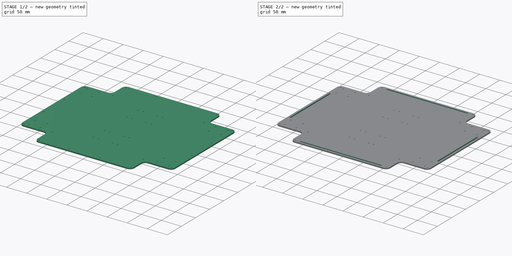
[diagram: build sequence overview — one tinted view per stage of 2, left to right]
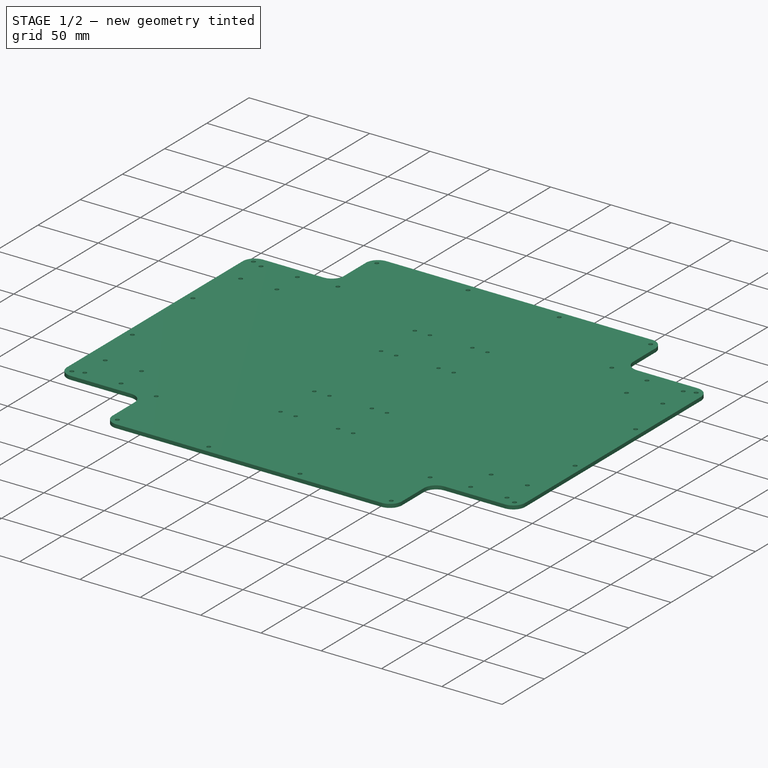
[diagram: stage 1 of 2 — iso view after this stage's code; geometry added in this stage tinted green]
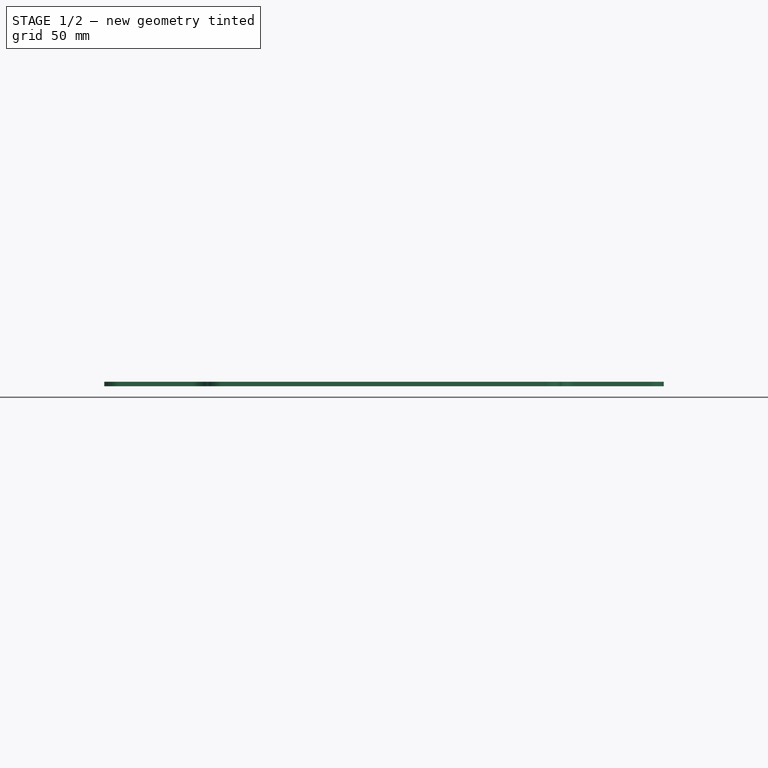
[diagram: stage 1 of 2 — front view after this stage's code; geometry added in this stage tinted green]
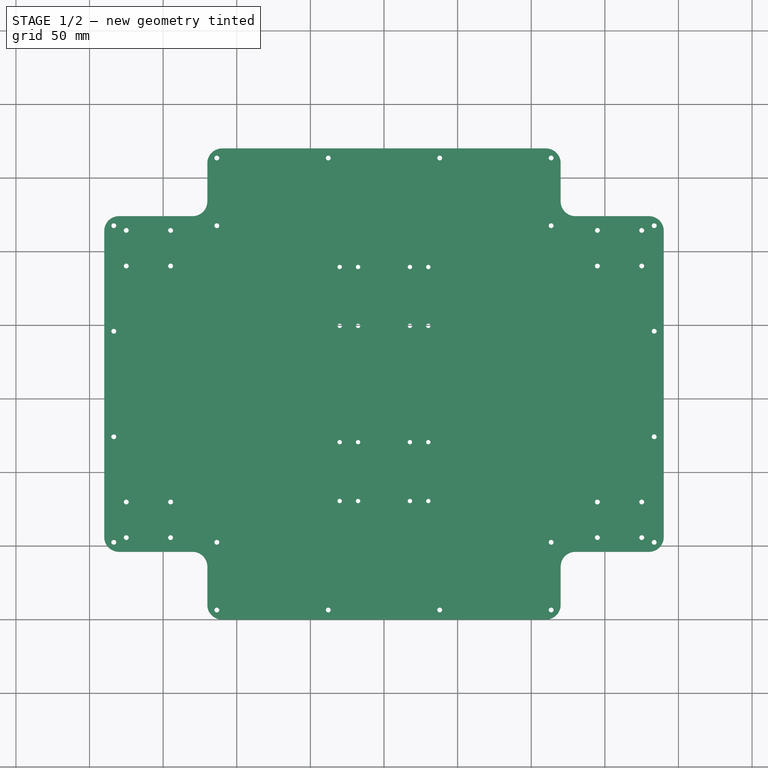
[diagram: stage 1 of 2 — top view after this stage's code; geometry added in this stage tinted green]
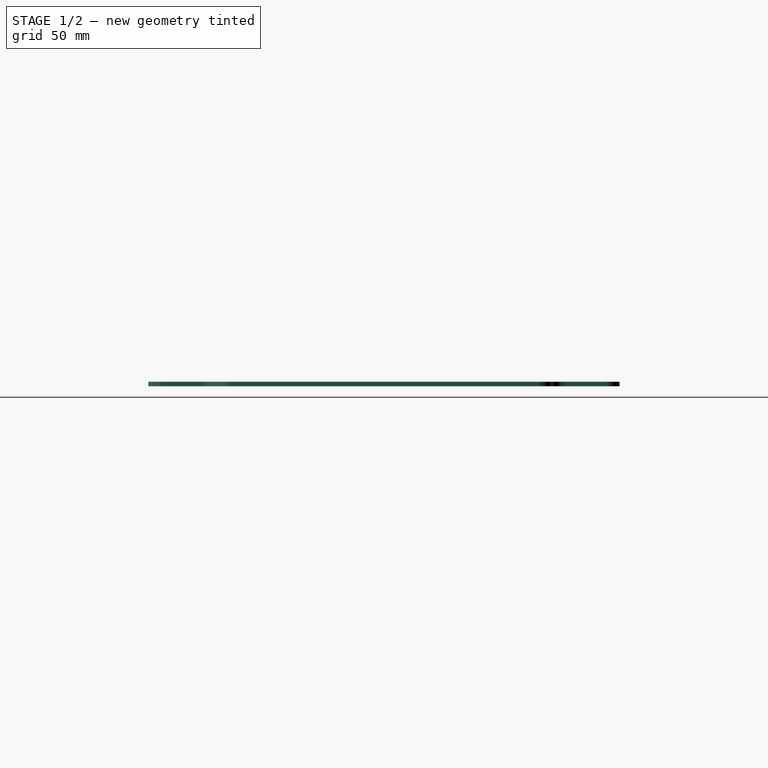
[diagram: stage 1 of 2 — right view after this stage's code; geometry added in this stage tinted green]
FCSTD DOCUMENT  (FreeCAD 1.0R39109 (Git))
Label: base_arriba_ranuras
License: All rights reserved
LicenseURL: https://en.wikipedia.org/wiki/All_rights_reserved
objects: Sketcher::SketchObject×3, PartDesign::Pocket×3, Part::Feature×1, PartDesign::FeatureBase×1, PartDesign::Body×1
note: 19 computed .brp shape members not serialized (recipe doc carries the construction recipe); baked Part::Feature solids carry a one-line shape summary decoded from their .brp

FEATURE [Part::Feature] Part__Feature  label="base_abajo v9"
  shape: bbox 380 x 320 x 3 mm, 62 faces (baked)
FEATURE [PartDesign::FeatureBase] BaseFeature
  BaseFeature = -> Part__Feature
  Suppressed = false
FEATURE [Sketcher::SketchObject] Sketch
  ArcFitTolerance = 1e-06
  AttachmentSupport = -> [BaseFeature]
  ExternalGeometry = -> [BaseFeature]
  FullyConstrained = false
  MakeInternals = false
  MapMode = 5
  Placement = pos=(0,0,3) rot=(0,0,1;0rad)
  sketch-geometry (30):
    g0: LineSegment [constr] StartX=-190 StartY=160 StartZ=0 EndX=190 EndY=160 EndZ=0
    g1: Circle [constr] CenterX=-8.6e-15 CenterY=160 CenterZ=0 NormalX=0 NormalY=0 NormalZ=1 AngleXU=0 Radius=32
    g2: LineSegment [constr] StartX=-8.6e-15 StartY=160 StartZ=0 EndX=-8.6e-15 EndY=128 EndZ=0
    g3: LineSegment [constr] StartX=-8.6e-15 StartY=160 StartZ=0 EndX=-8.6e-15 EndY=192 EndZ=0
    g4: LineSegment [constr] StartX=-8.6e-15 StartY=192 StartZ=0 EndX=0 EndY=194.5 EndZ=0
    g5: LineSegment [constr] StartX=0 StartY=194.5 StartZ=0 EndX=35.1 EndY=194.5 EndZ=0
    g6: LineSegment [constr] StartX=0 StartY=194.5 StartZ=0 EndX=-35.1 EndY=194.5 EndZ=0
    g7: LineSegment [constr] StartX=35.1 StartY=194.5 StartZ=0 EndX=35.1 EndY=199.5 EndZ=0
    g8: LineSegment [constr] StartX=35.1 StartY=199.5 StartZ=0 EndX=30.1 EndY=199.5 EndZ=0
    g9: LineSegment [constr] StartX=-35.1 StartY=194.5 StartZ=0 EndX=-35.1 EndY=199.5 EndZ=0
    g10: LineSegment [constr] StartX=-35.1 StartY=199.5 StartZ=0 EndX=-30.1 EndY=199.5 EndZ=0
    g11: Circle CenterX=30.1 CenterY=199.5 CenterZ=0 NormalX=0 NormalY=0 NormalZ=1 AngleXU=0 Radius=1.5
    g12: Circle CenterX=-30.1 CenterY=199.5 CenterZ=0 NormalX=0 NormalY=0 NormalZ=1 AngleXU=0 Radius=1.5
    g13: LineSegment [constr] StartX=30.1 StartY=199.5 StartZ=0 EndX=17.6 EndY=199.5 EndZ=0
    g14: LineSegment [constr] StartX=-30.1 StartY=199.5 StartZ=0 EndX=-17.6 EndY=199.5 EndZ=0
    g15: Circle CenterX=17.6 CenterY=199.5 CenterZ=0 NormalX=0 NormalY=0 NormalZ=1 AngleXU=0 Radius=1.5
    g16: Circle CenterX=-17.6 CenterY=199.5 CenterZ=0 NormalX=0 NormalY=0 NormalZ=1 AngleXU=0 Radius=1.5
    g17: LineSegment [constr] StartX=30.1 StartY=199.5 StartZ=0 EndX=30.1 EndY=239.5 EndZ=0
    g18: Circle CenterX=30.1 CenterY=239.5 CenterZ=0 NormalX=0 NormalY=0 NormalZ=1 AngleXU=0 Radius=1.5
    g19: Circle CenterX=17.6 CenterY=239.5 CenterZ=0 NormalX=0 NormalY=0 NormalZ=1 AngleXU=0 Radius=1.5
    g20: Circle CenterX=-17.6 CenterY=239.5 CenterZ=0 NormalX=0 NormalY=0 NormalZ=1 AngleXU=0 Radius=1.5
    g21: Circle CenterX=-30.1 CenterY=239.5 CenterZ=0 NormalX=0 NormalY=0 NormalZ=1 AngleXU=0 Radius=1.5
    g22: Circle CenterX=-30.1 CenterY=80.5 CenterZ=0 NormalX=0 NormalY=0 NormalZ=1 AngleXU=0 Radius=1.5
    g23: Circle CenterX=-17.6 CenterY=80.5 CenterZ=0 NormalX=0 NormalY=0 NormalZ=1 AngleXU=0 Radius=1.5
    g24: Circle CenterX=17.6 CenterY=80.5 CenterZ=0 NormalX=0 NormalY=0 NormalZ=1 AngleXU=0 Radius=1.5
    g25: Circle CenterX=30.1 CenterY=80.5 CenterZ=0 NormalX=0 NormalY=0 NormalZ=1 AngleXU=0 Radius=1.5
    g26: Circle CenterX=30.1 CenterY=120.5 CenterZ=0 NormalX=0 NormalY=0 NormalZ=1 AngleXU=0 Radius=1.5
    g27: Circle CenterX=17.6 CenterY=120.5 CenterZ=0 NormalX=0 NormalY=0 NormalZ=1 AngleXU=0 Radius=1.5
    g28: Circle CenterX=-17.6 CenterY=120.5 CenterZ=0 NormalX=0 NormalY=0 NormalZ=1 AngleXU=0 Radius=1.5
    g29: Circle CenterX=-30.1 CenterY=120.5 CenterZ=0 NormalX=0 NormalY=0 NormalZ=1 AngleXU=0 Radius=1.5
  constraints (68):
    c: Symmetric(g-3,g-3,g0)
    c: Symmetric(g-4,g-4,g0)
    c: Diameter(g1) = 64
    c: Symmetric(g0,g0,g1)
    c: Coincident(g2,g1)
    c: PointOnObject(g2,g1)
    c: Vertical(g2)
    c: Coincident(g3,g1)
    c: PointOnObject(g3,g1)
    c: Vertical(g3)
    c: Distance(g4) = 2.5
    c: Coincident(g4,g3)
    c: PointOnObject(g4,g-2)
    c: Distance(g5) = 35.1
    c: Coincident(g5,g4)
    c: Horizontal(g5)
    c: Coincident(g6,g4)
    c: Horizontal(g6)
    c: Equal(g6,g5)
    c: Distance(g7) = 5
    c: Coincident(g7,g5)
    c: Vertical(g7)
    c: Distance(g8) = 5
    c: Coincident(g8,g7)
    c: Horizontal(g8)
    c: Coincident(g9,g6)
    c: Vertical(g9)
    c: Equal(g9,g7)
    c: Coincident(g10,g9)
    c: Horizontal(g10)
    c: Equal(g10,g8)
    c: Diameter(g11) = 3
    c: Coincident(g11,g8)
    c: Coincident(g12,g10)
    c: Equal(g12,g11)
    c: Distance(g13) = 12.5
    c: Coincident(g13,g8)
    c: Horizontal(g13)
    c: Coincident(g14,g10)
    c: Horizontal(g14)
    c: Equal(g14,g13)
    c: Coincident(g15,g13)
    c: Coincident(g16,g14)
    c: Equal(g15,g11)
    c: Equal(g16,g11)
    c: Distance(g17) = 40
    c: Coincident(g17,g8)
    c: Vertical(g17)
    c: Diameter(g18) = 3
    c: Equal(g21,g18)
    c: Equal(g19,g18)
    c: Equal(g20,g18)
    c: Equal(g11,g26)
    c: Symmetric(g11,g26,g0)
    c: Equal(g12,g29)
    c: Symmetric(g12,g29,g0)
    c: Equal(g15,g27)
    c: Symmetric(g15,g27,g0)
    c: Equal(g16,g28)
    c: Symmetric(g16,g28,g0)
    c: Equal(g18,g25)
    c: Symmetric(g18,g25,g0)
    c: Equal(g19,g24)
    c: Symmetric(g19,g24,g0)
    c: Equal(g20,g23)
    c: Symmetric(g20,g23,g0)
    c: Equal(g21,g22)
    c: Symmetric(g21,g22,g0)
FEATURE [PartDesign::Pocket] Pocket
  BaseFeature = -> BaseFeature
  Direction = (0,0,-1)
  Length = 16
  Length2 = 5
  Profile = -> Sketch
  ReferenceAxis = -> Sketch [N_Axis]
  Refine = true
  Suppressed = false
  Type = 0
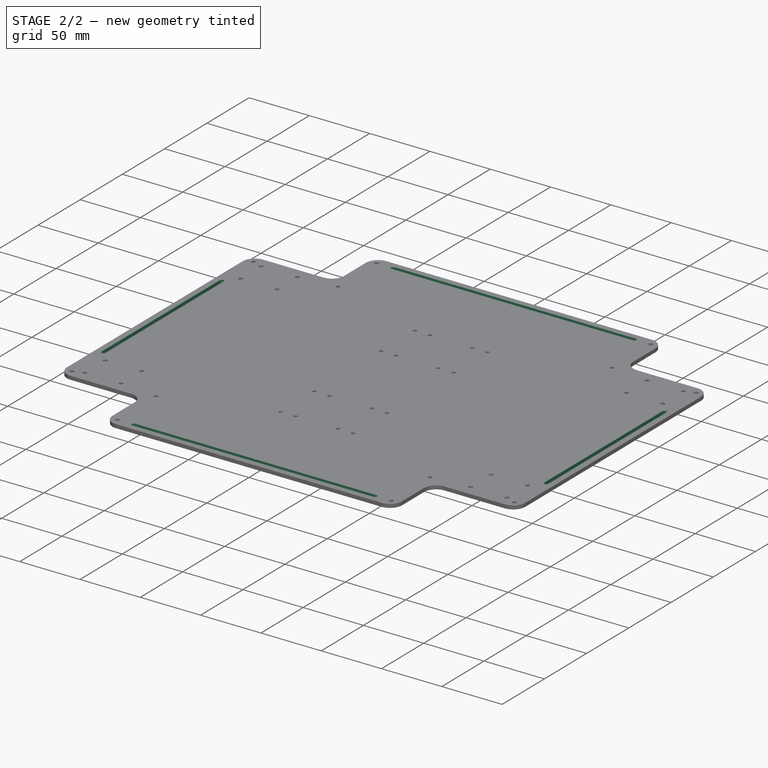
[diagram: stage 2 of 2 — iso view after this stage's code; geometry added in this stage tinted green]
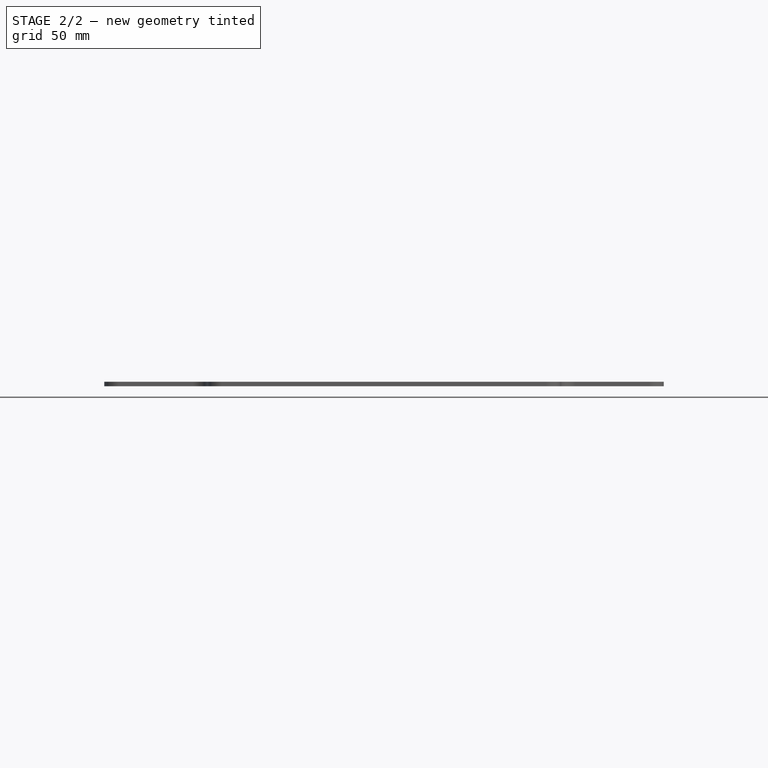
[diagram: stage 2 of 2 — front view after this stage's code; geometry added in this stage tinted green]
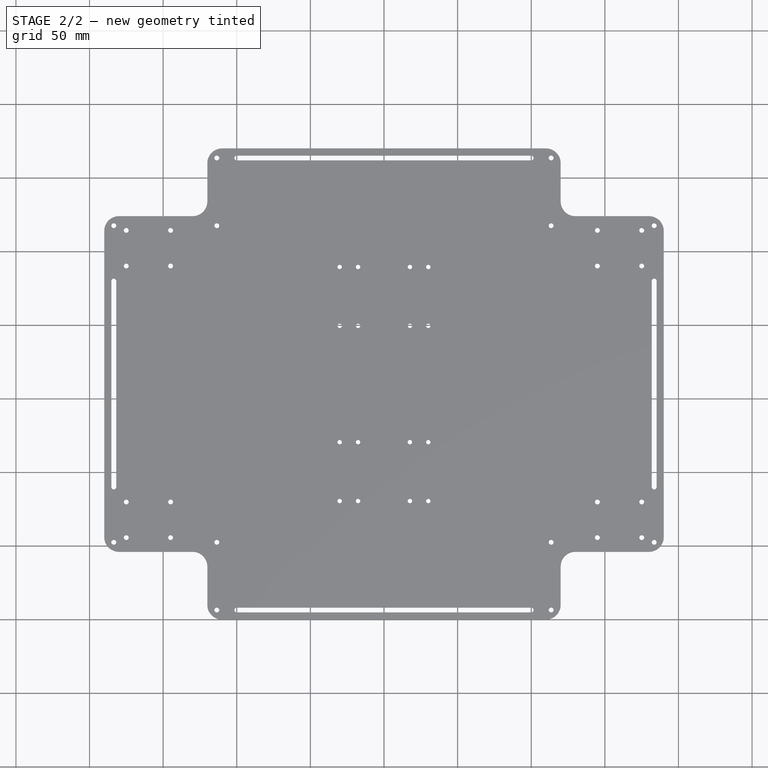
[diagram: stage 2 of 2 — top view after this stage's code; geometry added in this stage tinted green]
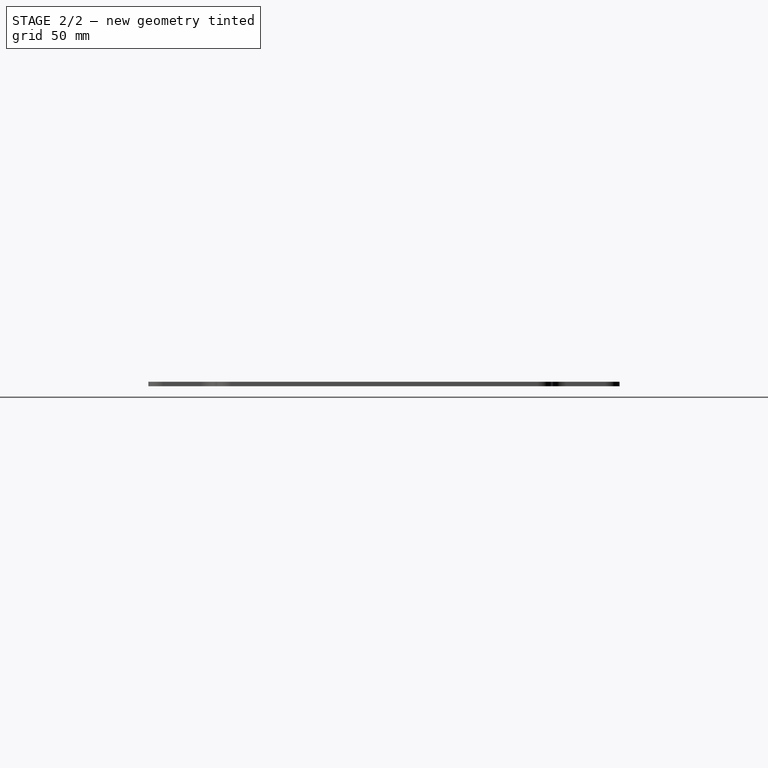
[diagram: stage 2 of 2 — right view after this stage's code; geometry added in this stage tinted green]
FEATURE [Sketcher::SketchObject] Sketch001
  ArcFitTolerance = 1e-06
  AttachmentSupport = -> [Pocket]
  ExternalGeometry = -> [Pocket]
  FullyConstrained = false
  MakeInternals = false
  MapMode = 5
  Placement = pos=(0,0,3) rot=(0,0,1;0rad)
  sketch-geometry (13):
    g0: LineSegment [constr] StartX=-37.8452 StartY=6.46447 StartZ=0 EndX=37.8452 EndY=6.46447 EndZ=0
    g1: LineSegment [constr] StartX=-2.476e-13 StartY=6.46447 StartZ=0 EndX=-100 EndY=6.46447 EndZ=0
    g2: LineSegment [constr] StartX=-2.476e-13 StartY=6.46447 StartZ=0 EndX=100 EndY=6.46447 EndZ=0
    g3: ArcOfCircle CenterX=-100 CenterY=6.46447 CenterZ=0 NormalX=0 NormalY=0 NormalZ=1 AngleXU=0 Radius=1.65 StartAngle=1.5708 EndAngle=4.71239
    g4: ArcOfCircle CenterX=100 CenterY=6.46447 CenterZ=0 NormalX=0 NormalY=0 NormalZ=1 AngleXU=0 Radius=1.65 StartAngle=4.71239 EndAngle=7.85398
    g5: LineSegment StartX=-100 StartY=8.11447 StartZ=0 EndX=100 EndY=8.11447 EndZ=0
    g6: LineSegment StartX=-100 StartY=4.81447 StartZ=0 EndX=100 EndY=4.81447 EndZ=0
    g7: LineSegment [constr] StartX=-37.8452 StartY=313.536 StartZ=0 EndX=37.8452 EndY=313.536 EndZ=0
    g8: LineSegment [constr] StartX=0 StartY=313.536 StartZ=0 EndX=-2.476e-13 EndY=6.46447 EndZ=0
    g9: LineSegment StartX=-100 StartY=315.186 StartZ=0 EndX=100 EndY=315.186 EndZ=0
    g10: ArcOfCircle CenterX=-100 CenterY=313.536 CenterZ=0 NormalX=0 NormalY=0 NormalZ=1 AngleXU=0 Radius=1.65 StartAngle=1.5708 EndAngle=4.71239
    g11: LineSegment StartX=-100 StartY=311.886 StartZ=0 EndX=100 EndY=311.886 EndZ=0
    g12: ArcOfCircle CenterX=100 CenterY=313.536 CenterZ=0 NormalX=0 NormalY=0 NormalZ=1 AngleXU=0 Radius=1.65 StartAngle=4.71239 EndAngle=7.85398
  constraints (24):
    c: Coincident(g0,g-3)
    c: Coincident(g0,g-4)
    c: Distance(g1) = 100
    c: Symmetric(g0,g0,g1)
    c: Horizontal(g1)
    c: Coincident(g2,g1)
    c: Horizontal(g2)
    c: Equal(g2,g1)
    c: Tangent(g3,g5) = 1.5708
    c: Tangent(g3,g6) = -1.5708
    c: Tangent(g4,g5) = 1.5708
    c: Tangent(g4,g6) = -1.5708
    c: Equal(g3,g4)
    c: Horizontal(g6)
    c: Coincident(g7,g-8)
    c: Coincident(g7,g-7)
    c: Symmetric(g7,g7,g8)
    c: Coincident(g8,g1)
    c: Tangent(g10,g9) = 1.5708
    c: Tangent(g10,g11) = -1.5708
    c: Tangent(g12,g9) = 1.5708
    c: Tangent(g12,g11) = -1.5708
    c: Equal(g10,g12)
    c: Horizontal(g11)
FEATURE [PartDesign::Pocket] Pocket001
  BaseFeature = -> Pocket
  Direction = (0,0,-1)
  Length = 12
  Length2 = 5
  Profile = -> Sketch001
  ReferenceAxis = -> Sketch001 [N_Axis]
  Refine = true
  Suppressed = false
  Type = 0
FEATURE [Sketcher::SketchObject] Sketch002
  ArcFitTolerance = 1e-06
  AttachmentSupport = -> [Pocket001]
  ExternalGeometry = -> [Pocket001]
  FullyConstrained = false
  MakeInternals = false
  MapMode = 5
  Placement = pos=(0,0,3) rot=(0,0,1;0rad)
  sketch-geometry (13):
    g0: LineSegment [constr] StartX=183.536 StartY=124.155 StartZ=0 EndX=183.536 EndY=195.845 EndZ=0
    g1: LineSegment [constr] StartX=183.536 StartY=160 StartZ=0 EndX=183.536 EndY=90 EndZ=0
    g2: LineSegment [constr] StartX=183.536 StartY=160 StartZ=0 EndX=183.536 EndY=230 EndZ=0
    g3: LineSegment [constr] StartX=-183.536 StartY=195.845 StartZ=0 EndX=-183.536 EndY=124.155 EndZ=0
    g4: LineSegment [constr] StartX=-183.536 StartY=160 StartZ=0 EndX=183.536 EndY=160 EndZ=0
    g5: ArcOfCircle CenterX=183.536 CenterY=230 CenterZ=0 NormalX=0 NormalY=0 NormalZ=1 AngleXU=0 Radius=1.65 StartAngle=6e-16 EndAngle=3.14159
    g6: ArcOfCircle CenterX=183.536 CenterY=90 CenterZ=0 NormalX=0 NormalY=0 NormalZ=1 AngleXU=0 Radius=1.65 StartAngle=3.14159 EndAngle=6.28319
    g7: LineSegment StartX=185.186 StartY=230 StartZ=0 EndX=185.186 EndY=90 EndZ=0
    g8: LineSegment StartX=181.886 StartY=230 StartZ=0 EndX=181.886 EndY=90 EndZ=0
    g9: LineSegment StartX=-181.886 StartY=230 StartZ=0 EndX=-181.886 EndY=90 EndZ=0
    g10: ArcOfCircle CenterX=-183.536 CenterY=90 CenterZ=0 NormalX=0 NormalY=0 NormalZ=1 AngleXU=0 Radius=1.65 StartAngle=3.14159 EndAngle=6.28319
    g11: LineSegment StartX=-185.186 StartY=230 StartZ=0 EndX=-185.186 EndY=90 EndZ=0
    g12: ArcOfCircle CenterX=-183.536 CenterY=230 CenterZ=0 NormalX=0 NormalY=0 NormalZ=1 AngleXU=0 Radius=1.65 StartAngle=6e-16 EndAngle=3.14159
  constraints (26):
    c: DistanceY(g-6,g-5) = 215.071
    c: DistanceX(g-8,g-7) = 227.071
    c: Coincident(g0,g-3)
    c: Coincident(g0,g-4)
    c: Distance(g1) = 70
    c: Symmetric(g0,g0,g1)
    c: Vertical(g1)
    c: Coincident(g2,g1)
    c: Vertical(g2)
    c: Equal(g2,g1)
    c: Coincident(g3,g-10)
    c: Coincident(g3,g-9)
    c: Symmetric(g3,g3,g4)
    c: Coincident(g4,g1)
    c: Tangent(g5,g7) = 1.5708
    c: Tangent(g5,g8) = -1.5708
    c: Tangent(g6,g7) = 1.5708
    c: Tangent(g6,g8) = -1.5708
    c: Equal(g5,g6)
    c: Vertical(g8)
    c: Tangent(g12,g9) = 1.5708
    c: Tangent(g12,g11) = -1.5708
    c: Tangent(g10,g9) = 1.5708
    c: Tangent(g10,g11) = -1.5708
    c: Equal(g12,g10)
    c: Vertical(g11)
FEATURE [PartDesign::Pocket] Pocket002
  BaseFeature = -> Pocket001
  Direction = (0,0,-1)
  Length = 14
  Length2 = 5
  Profile = -> Sketch002
  ReferenceAxis = -> Sketch002 [N_Axis]
  Refine = true
  Suppressed = false
  Type = 0
FEATURE [PartDesign::Body] Body
  AllowCompound = false
  BaseFeature = -> Part__Feature
  Group = -> [BaseFeature,Sketch,Pocket,Sketch001,Pocket001,Sketch002,Pocket002]
  Origin = -> Origin
  Tip = -> Pocket002
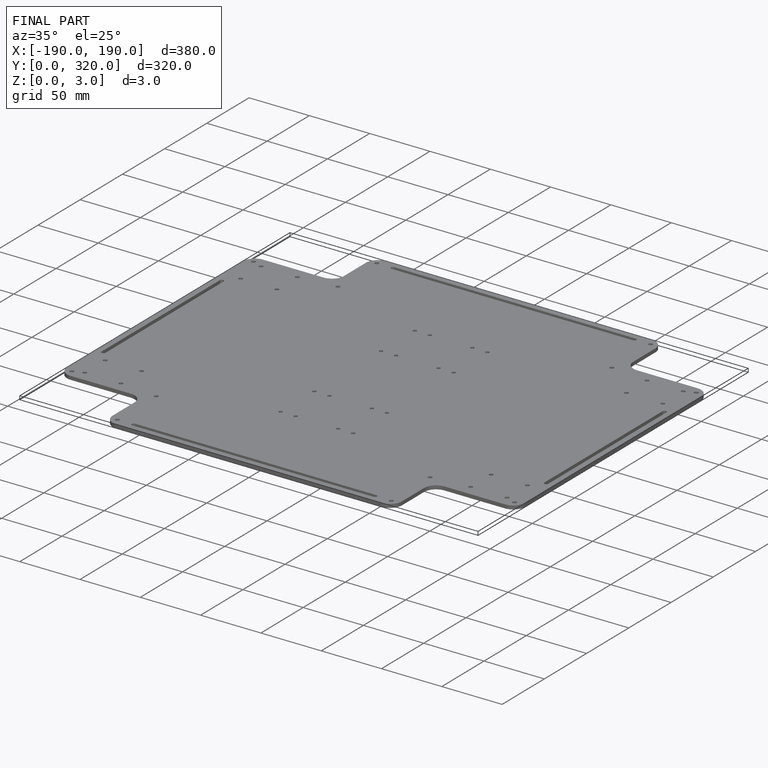
[diagram: finished part — iso view with bounding-box wireframe]
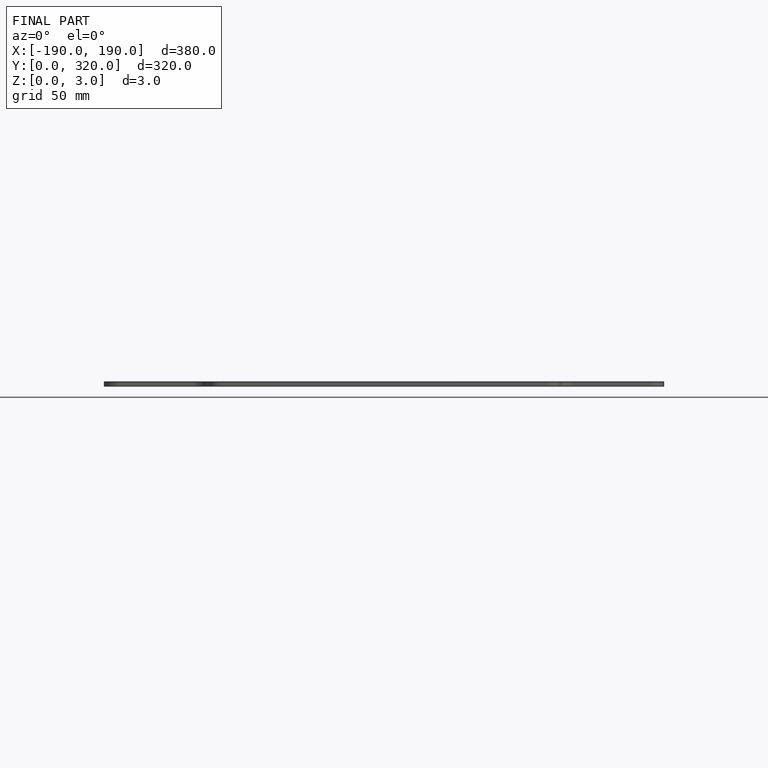
[diagram: finished part — front view with bounding-box wireframe]
